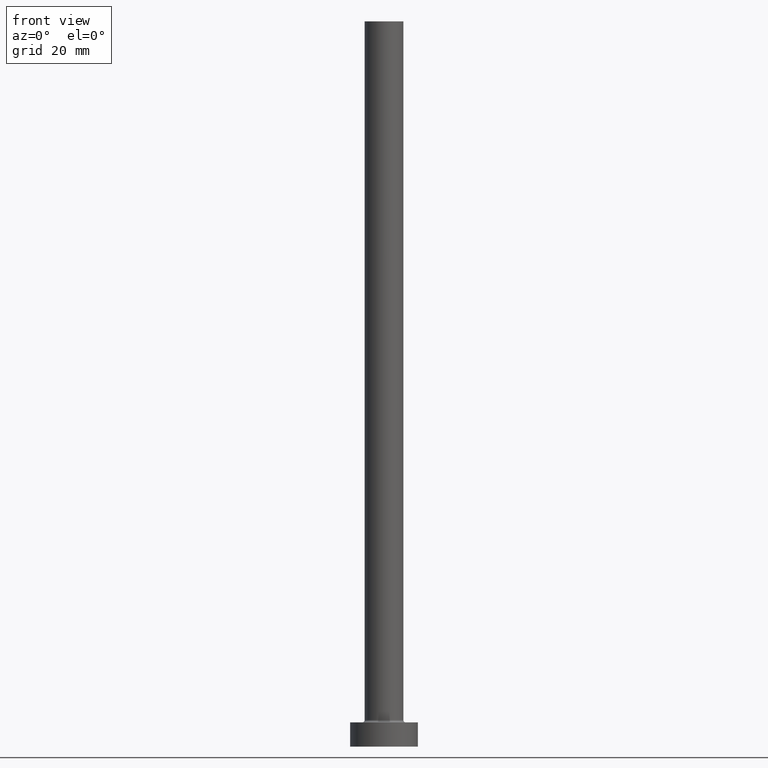
[diagram: clean part render]
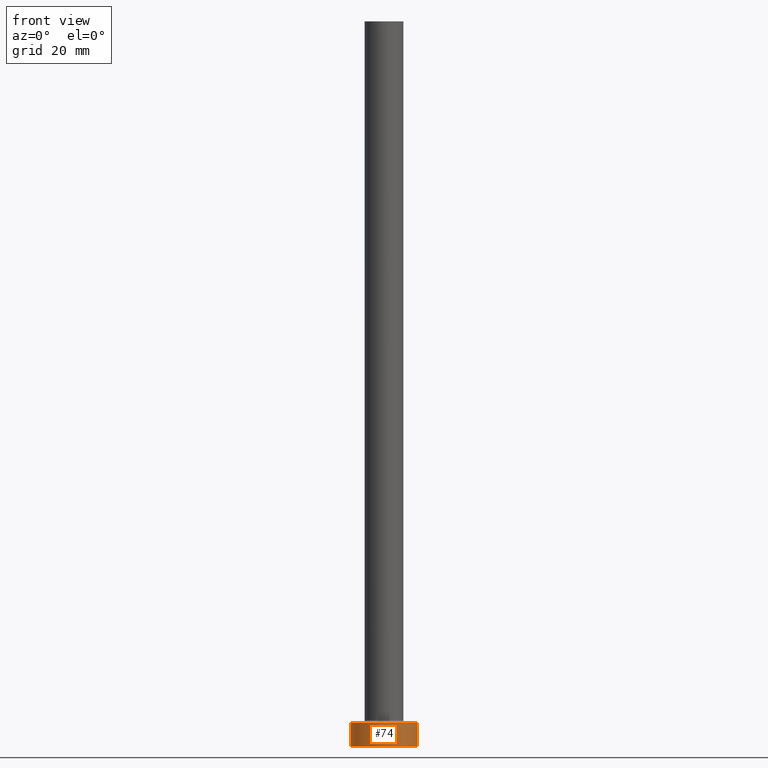
[diagram: same view with one face highlighted and labeled with its STEP entity id]
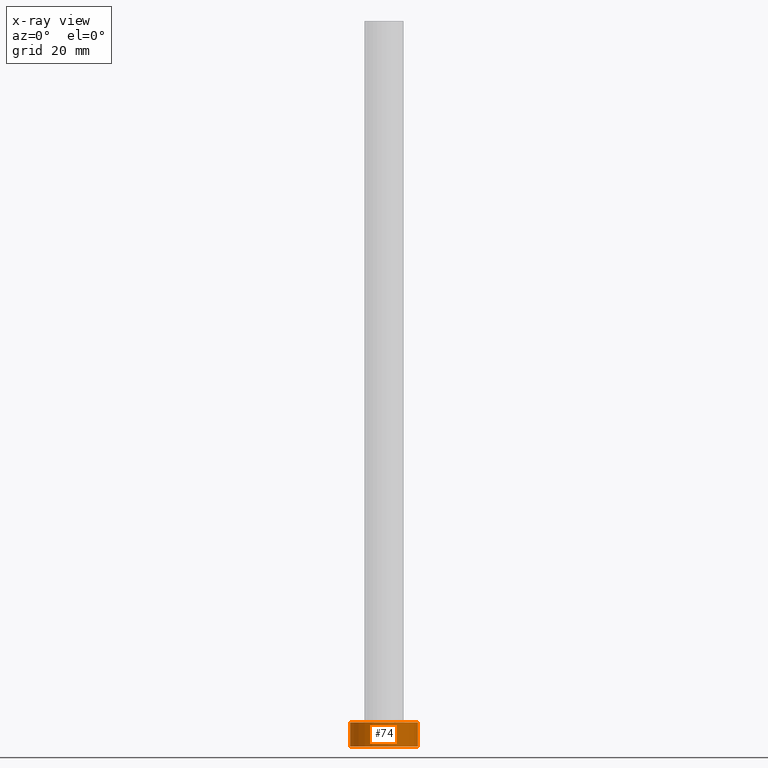
[diagram: x-ray of the same camera — body ghosted, the highlighted face saturated]
A machine part, front view. The second image highlights one B-rep face of the part: STEP entity #74.
The next image is the same camera in x-ray: the body ghosted, the highlighted face saturated — about 0% of this face is hidden behind the body in this view.
In plain terms, the highlighted cylindrical surface (edge-blend (fillet) strip) has radius 7 mm, axis along (-0, -0, -1).
Its self-contained STEP definition (entity closure, byte-faithful):
#1 = LINE ( 'NONE', #396, #433 ) ;
#23 = EDGE_CURVE ( 'NONE', #173, #392, #117, .T. ) ;
#25 = FACE_OUTER_BOUND ( 'NONE', #130, .T. ) ;
#63 = DIRECTION ( 'NONE',  ( -0.000000000000000000, -0.000000000000000000, -1.000000000000000000 ) ) ;
#65 = ORIENTED_EDGE ( 'NONE', *, *, #23, .F. ) ;
#74 = ADVANCED_FACE ( 'NONE', ( #25 ), #415, .T. ) ;
#84 = AXIS2_PLACEMENT_3D ( 'NONE', #421, #204, #349 ) ;
#98 = CARTESIAN_POINT ( 'NONE',  ( -7.000000000000000000, 0.000000000000000000, 0.000000000000000000 ) ) ;
#101 = LINE ( 'NONE', #354, #154 ) ;
#104 = DIRECTION ( 'NONE',  ( -0.000000000000000000, -0.000000000000000000, -1.000000000000000000 ) ) ;
#109 = CARTESIAN_POINT ( 'NONE',  ( 0.000000000000000000, 0.000000000000000000, 5.000000000000000000 ) ) ;
#117 = CIRCLE ( 'NONE', #358, 7.000000000000000000 ) ;
#130 = EDGE_LOOP ( 'NONE', ( #146, #65, #212, #167 ) ) ;
#142 = VERTEX_POINT ( 'NONE', #98 ) ;
#146 = ORIENTED_EDGE ( 'NONE', *, *, #377, .F. ) ;
#154 = VECTOR ( 'NONE', #207, 1000.000000000000000 ) ;
#166 = CARTESIAN_POINT ( 'NONE',  ( 0.000000000000000000, 0.000000000000000000, 5.000000000000000000 ) ) ;
#167 = ORIENTED_EDGE ( 'NONE', *, *, #232, .T. ) ;
#173 = VERTEX_POINT ( 'NONE', #271 ) ;
#204 = DIRECTION ( 'NONE',  ( 0.000000000000000000, 0.000000000000000000, 1.000000000000000000 ) ) ;
#207 = DIRECTION ( 'NONE',  ( -0.000000000000000000, -0.000000000000000000, -1.000000000000000000 ) ) ;
#209 = CARTESIAN_POINT ( 'NONE',  ( 7.000000000000000000, 8.572527594031473190E-16, 0.000000000000000000 ) ) ;
#212 = ORIENTED_EDGE ( 'NONE', *, *, #298, .T. ) ;
#232 = EDGE_CURVE ( 'NONE', #142, #399, #459, .T. ) ;
#251 = CARTESIAN_POINT ( 'NONE',  ( 7.000000000000000000, 8.572527594031473190E-16, 5.000000000000000000 ) ) ;
#271 = CARTESIAN_POINT ( 'NONE',  ( -7.000000000000000000, 0.000000000000000000, 5.000000000000000000 ) ) ;
#298 = EDGE_CURVE ( 'NONE', #173, #142, #101, .T. ) ;
#349 = DIRECTION ( 'NONE',  ( 1.000000000000000000, 0.000000000000000000, 0.000000000000000000 ) ) ;
#354 = CARTESIAN_POINT ( 'NONE',  ( -7.000000000000000000, 0.000000000000000000, 5.000000000000000000 ) ) ;
#358 = AXIS2_PLACEMENT_3D ( 'NONE', #109, #360, #436 ) ;
#360 = DIRECTION ( 'NONE',  ( 0.000000000000000000, 0.000000000000000000, 1.000000000000000000 ) ) ;
#377 = EDGE_CURVE ( 'NONE', #392, #399, #1, .T. ) ;
#378 = DIRECTION ( 'NONE',  ( -1.000000000000000000, 0.000000000000000000, 0.000000000000000000 ) ) ;
#379 = AXIS2_PLACEMENT_3D ( 'NONE', #166, #63, #378 ) ;
#392 = VERTEX_POINT ( 'NONE', #251 ) ;
#396 = CARTESIAN_POINT ( 'NONE',  ( 7.000000000000000000, 8.572527594031473190E-16, 5.000000000000000000 ) ) ;
#399 = VERTEX_POINT ( 'NONE', #209 ) ;
#415 = CYLINDRICAL_SURFACE ( 'NONE', #379, 7.000000000000000000 ) ;
#421 = CARTESIAN_POINT ( 'NONE',  ( 0.000000000000000000, 0.000000000000000000, 0.000000000000000000 ) ) ;
#433 = VECTOR ( 'NONE', #104, 1000.000000000000000 ) ;
#436 = DIRECTION ( 'NONE',  ( 1.000000000000000000, 0.000000000000000000, 0.000000000000000000 ) ) ;
#459 = CIRCLE ( 'NONE', #84, 7.000000000000000000 ) ;